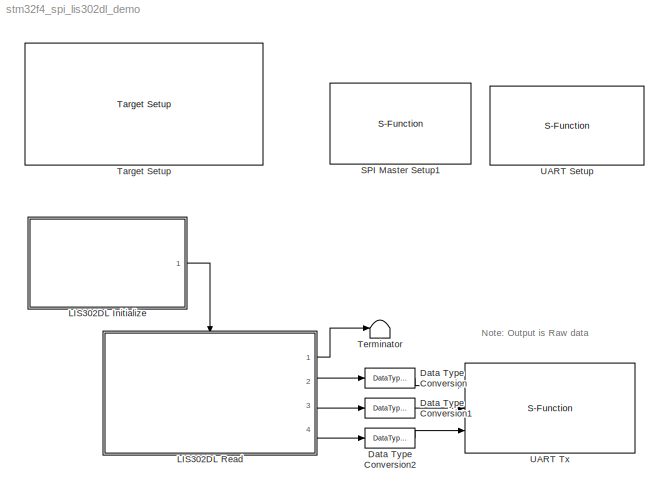
MODEL stm32f4_spi_lis302dl_demo
KIND model
CONFIG PreLoadFcn = waijung.modelPreload; % Required for working with Waijung Blockset. Do not remove.
BLOCK [DataTypeConversion] Data Type Conversion
  OutDataType = fixdt(1, 16)
  OutScaling = 2^0
  RndMeth = Floor
  SaturateOnIntegerOverflow = off
BLOCK [DataTypeConversion] Data Type Conversion1
  OutDataType = fixdt(1, 16)
  OutScaling = 2^0
  RndMeth = Floor
  SaturateOnIntegerOverflow = off
BLOCK [DataTypeConversion] Data Type Conversion2
  OutDataType = fixdt(1, 16)
  OutScaling = 2^0
  RndMeth = Floor
  SaturateOnIntegerOverflow = off
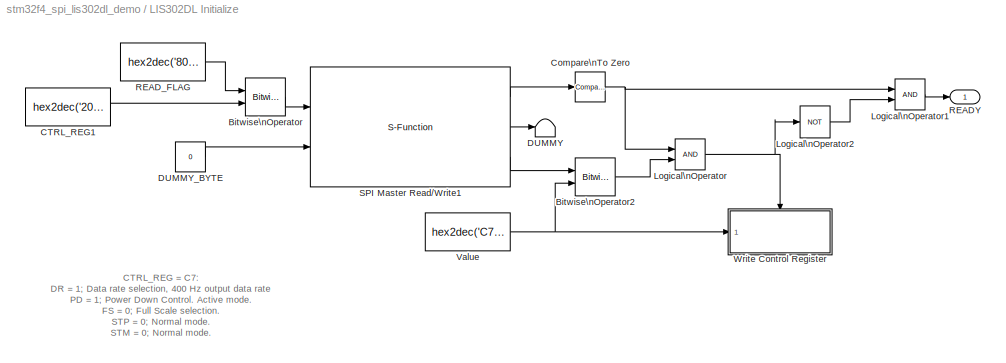
BLOCK [SubSystem] LIS302DL Initialize
  FunctionWithSeparateData = off
  MaskHideContents = off
  MinAlgLoopOccurrences = off
  Opaque = off
  Ports = [0, 1]
  PropExecContextOutsideSubsystem = off
  RTWSystemCode = Auto
  RequestExecContextInheritance = off
BLOCK [Reference] LIS302DL Initialize/Bitwise\nOperator  REF=simulink/Logic and Bit\nOperations/Bitwise\nOperator
  BitMask = bin2dec('11011001')
  BitMaskRealWorld = Stored Integer
  NumInputPorts = 2
  Ports = [2, 1]
  SourceBlock = simulink/Logic and Bit\nOperations/Bitwise\nOperator
  SourceType = Bitwise Operator
  UseBitMask = off
  logicop = OR
BLOCK [Reference] LIS302DL Initialize/Bitwise\nOperator2  REF=simulink/Logic and Bit\nOperations/Bitwise\nOperator
  BitMask = bin2dec('11011001')
  BitMaskRealWorld = Stored Integer
  NumInputPorts = 2
  Ports = [2, 1]
  SourceBlock = simulink/Logic and Bit\nOperations/Bitwise\nOperator
  SourceType = Bitwise Operator
  UseBitMask = off
  logicop = XOR
BLOCK [Constant] LIS302DL Initialize/CTRL_REG1
  OutDataType = fixdt(1, 16)
  OutDataTypeMode = uint8
  OutDataTypeStr = uint8
  OutScaling = 2^0
  SampleTime = 0.02
  Value = hex2dec('20')
BLOCK [Reference] LIS302DL Initialize/Compare\nTo Zero  REF=simulink/Logic and Bit\nOperations/Compare\nTo Zero
  FunctionWithSeparateData = off
  LogicOutDataTypeMode = boolean
  Ports = [1, 1]
  RTWMemSecDataConstants = Inherit from model
  RTWMemSecDataInternal = Inherit from model
  RTWMemSecDataParameters = Inherit from model
  RTWMemSecFuncExecute = Inherit from model
  RTWMemSecFuncInitTerm = Inherit from model
  ShowPortLabels = FromPortIcon
  SourceBlock = simulink/Logic and Bit\nOperations/Compare\nTo Zero
  SourceType = Compare To Zero
  SystemSampleTime = -1
  ZeroCross = off
  relop = ==
BLOCK [Terminator] LIS302DL Initialize/DUMMY
BLOCK [Constant] LIS302DL Initialize/DUMMY_BYTE
  OutDataType = fixdt(1, 16)
  OutDataTypeMode = uint8
  OutDataTypeStr = uint8
  OutScaling = 2^0
  Value = 0
BLOCK [Logic] LIS302DL Initialize/Logical\nOperator
  AllPortsSameDT = off
  LogicDataType = fixdt(0, 8)
  OutDataTypeMode = boolean
  OutDataTypeStr = boolean
  Ports = [2, 1]
BLOCK [Logic] LIS302DL Initialize/Logical\nOperator1
  AllPortsSameDT = off
  LogicDataType = fixdt(0, 8)
  OutDataTypeMode = boolean
  OutDataTypeStr = boolean
  Ports = [2, 1]
BLOCK [Logic] LIS302DL Initialize/Logical\nOperator2
  AllPortsSameDT = off
  LogicDataType = fixdt(0, 8)
  Operator = NOT
  OutDataTypeMode = boolean
  OutDataTypeStr = boolean
  Ports = [1, 1]
BLOCK [Outport] LIS302DL Initialize/READY
  IconDisplay = Port number
BLOCK [Constant] LIS302DL Initialize/READ_FLAG
  OutDataType = fixdt(1, 16)
  OutDataTypeMode = uint8
  OutDataTypeStr = uint8
  OutScaling = 2^0
  Value = hex2dec('80')
BLOCK [S-Function] LIS302DL Initialize/SPI Master Read//Write1
  EnableBusSupport = off
  FunctionName = stm32f4_spimaster
  MaskCallbackString = stm32f4_spimaster_callback('configuration');|stm32f4_spimaster_callback('module');|stm32f4_spimaster_callback('mode');||stm32f4_spimaster_callback('direction');||||stm32f4_spimaster_callback('datacount');|stm32f4_spimaster_callback('nssmode');|||||||||stm32f4_spimaster_callback('confstr');|stm32f4_spimaster_callback('sampletime');|stm32f4_spimaster_callback('sampletimestr');|stm32f4_spimaster_call...<+16ch>  <repeated x3 — deduplicated; at blocks: SPI Master Read/Write1>
  MaskDescription = Status:\n 0 - Success.\n Otherwise - Fail.
  MaskDisplay = text(0.5, 0.5, 'Module: SPI1 (Master)\\nRead/ Write\\nTs (sec): 0.02','ver','middle','hor','center');port_label('input', 1,'Wr0 (uint8)');port_label('input', 2,'Wr1 (uint8)');port_label('output', 1,'Status');port_label('output', 2,'Rd0 (uint8)');port_label('output', 3,'Rd1 (uint8)');
  MaskEnableString = on,on,off,off,on,on,on,on,on,on,on,on,on,on,on,on,off,off,on,on,on,on
  MaskHelp = web(fullfile(waijungdocroot,'stm32f4_spimaster_readwrite.htm'), '-browser')
  MaskIconFrame = on
  MaskIconOpaque = on
  MaskIconRotate = none
  MaskIconUnits = normalized
  MaskInitialization = stm32f4_spimaster_callback('init');
  MaskPortRotate = default
  MaskPromptString = Configuration:|SPI Module:|Mode:|Last module:|Direction:|Data format:|Buad rate prescaler: Pclk/|Clock polarity (CPOL)/ Clock phase (CPHA):|Data Read/Write count:|Slave/chip select (nSS, nCS) mode|Slave/chip select (nSS, nCS) pin|Slave/chip select port (nSS, nCS)|Slave/chip select pin (nSS, nCS)|SCLK pin:|MISO pin:|MOSI pin:|Input type array|Output type array|Configuration string|Sample time (sec)...<+45ch>  <repeated x3 — deduplicated; at blocks: SPI Master Read/Write1>
  MaskSelfModifiable = on
  MaskStyleString = popup(Setup|Transaction),popup(1|2|3),popup(Read/ Write|Read|Write),edit,popup(Full-Duplex|Half-Duplex_Tx|Half-Duplex_Rx),popup(8bit/ FirstBit_MSB|8bit/ FirstBit_LSB|16bit/ FirstBit_MSB|16bit/ FirstBit_LSB),popup(2|4|8|16|32|64|128|256),popup(CPOL_Low/ CPHA_1Edge|CPOL_Low/ CPHA_2Edge|CPOL_High/ CPHA_1Edge|CPOL_High/ CPHA_2Edge),edit,popup(Hardware|Software|Custom),popup(Not used|A4|A15),popup(A|B|...<+155ch>  <repeated x3 — deduplicated; at blocks: SPI Master Read/Write1>
  MaskTabNameString = ,,,,,,,,,,,,,,,,,,,,,
  MaskToolTipString = on,on,on,on,on,on,on,on,on,on,on,on,on,on,on,on,on,on,on,on,on,on
  MaskTunableValueString = off,off,off,off,off,off,off,off,off,off,off,off,off,off,off,off,off,off,off,off,off,off
  MaskType = stm32f4_spimaster
  MaskValueString = Transaction|1|Read/ Write|1|Full-Duplex|8bit/ FirstBit_MSB|4|CPOL_Low/ CPHA_1Edge|2|Custom|Not used|E|0|A5|A6|A7|[2 3 3]|[3 7 3 3]|[\"SPI_Direction_2Lines_FullDuplex\",\"8b\",\"MSB\",\"Low\",\"1Edge\",\"4\",\"Soft\",\"0\",\"x\",\"x\",\"0\",\"x\",\"x\",\"1\",\"A\",\"5\",\"1\",\"A\",\"6\",\"1\",\"A\",\"7\",\"1\",\"0\",\"0\",\"0\",\"0\",\"0\",\"0\",\"0\",\"0\",\"PP\",\"0\",\"UP\"]|-1|0.02|LIS302DLIni...<+26ch>
  MaskVarAliasString = ,,,,,,,,,,,,,,,,,,,,,
  MaskVariables = configuration=&1;module=&2;mode=&3;lastmodule=&4;direction=&5;dataformat=&6;prescaler=&7;cpolcpha=&8;datacount=@9;nssmode=&10;nsspin=&11;softnssport=&12;softnsspin=&13;sckpin=&14;misopin=&15;mosipin=&16;inputtypearray=@17;outputtypearray=@18;confstr=&19;sampletime=@20;sampletimestr=&21;blockid=&22;  <repeated x3 — deduplicated; at blocks: SPI Master Read/Write1>
  MaskVisibilityString = off,on,off,off,off,off,off,off,on,off,off,off,off,off,off,off,off,off,off,on,off,off
  Parameters = mode,configuration,module,datacount,inputtypearray,outputtypearray,confstr,sampletime,sampletimestr,blockid
  Ports = [2, 3]
BLOCK [Constant] LIS302DL Initialize/Value
  OutDataType = fixdt(1, 16)
  OutDataTypeMode = uint8
  OutDataTypeStr = uint8
  OutScaling = 2^0
  Value = hex2dec('C7')
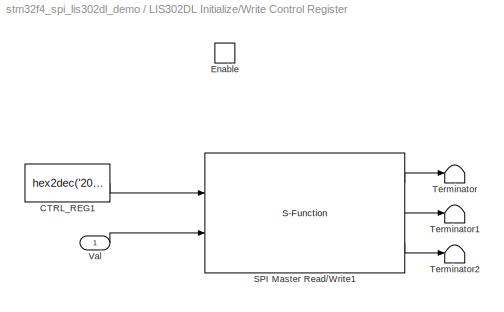
BLOCK [SubSystem] LIS302DL Initialize/Write Control Register
  FunctionWithSeparateData = off
  MaskHideContents = off
  MinAlgLoopOccurrences = off
  Opaque = off
  Ports = [1, 0, 1]
  PropExecContextOutsideSubsystem = off
  RTWSystemCode = Auto
  RequestExecContextInheritance = off
  TreatAsAtomicUnit = on
BLOCK [Constant] LIS302DL Initialize/Write Control Register/CTRL_REG1
  OutDataType = fixdt(1, 16)
  OutDataTypeMode = uint8
  OutDataTypeStr = uint8
  OutScaling = 2^0
  Value = hex2dec('20')
BLOCK [EnablePort] LIS302DL Initialize/Write Control Register/Enable
  Ports = []
BLOCK [S-Function] LIS302DL Initialize/Write Control Register/SPI Master Read//Write1
  EnableBusSupport = off
  FunctionName = stm32f4_spimaster
  MaskDescription = Status:\n 0 - Success.\n Otherwise - Fail.
  MaskDisplay = text(0.5, 0.5, 'Module: SPI1 (Master)\\nRead/ Write\\nTs (sec): 0.02','ver','middle','hor','center');port_label('input', 1,'Wr0 (uint8)');port_label('input', 2,'Wr1 (uint8)');port_label('output', 1,'Status');port_label('output', 2,'Rd0 (uint8)');port_label('output', 3,'Rd1 (uint8)');
  MaskEnableString = on,on,off,off,on,on,on,on,on,on,on,on,on,on,on,on,off,off,on,on,on,on
  MaskHelp = web(fullfile(waijungdocroot,'stm32f4_spimaster_readwrite.htm'), '-browser')
  MaskIconFrame = on
  MaskIconOpaque = on
  MaskIconRotate = none
  MaskIconUnits = normalized
  MaskInitialization = stm32f4_spimaster_callback('init');
  MaskPortRotate = default
  MaskSelfModifiable = on
  MaskTabNameString = ,,,,,,,,,,,,,,,,,,,,,
  MaskToolTipString = on,on,on,on,on,on,on,on,on,on,on,on,on,on,on,on,on,on,on,on,on,on
  MaskTunableValueString = off,off,off,off,off,off,off,off,off,off,off,off,off,off,off,off,off,off,off,off,off,off
  MaskType = stm32f4_spimaster
  MaskValueString = Transaction|1|Read/ Write|1|Full-Duplex|8bit/ FirstBit_MSB|4|CPOL_Low/ CPHA_1Edge|2|Custom|Not used|E|0|A5|A6|A7|[2 3 3]|[3 7 3 3]|[\"SPI_Direction_2Lines_FullDuplex\",\"8b\",\"MSB\",\"Low\",\"1Edge\",\"4\",\"Soft\",\"0\",\"x\",\"x\",\"0\",\"x\",\"x\",\"1\",\"A\",\"5\",\"1\",\"A\",\"6\",\"1\",\"A\",\"7\",\"1\",\"0\",\"0\",\"0\",\"0\",\"0\",\"0\",\"0\",\"0\",\"PP\",\"0\",\"UP\"]|-1|0.02|LIS302DLIni...<+46ch>
  MaskVarAliasString = ,,,,,,,,,,,,,,,,,,,,,
  MaskVisibilityString = off,on,off,off,off,off,off,off,on,off,off,off,off,off,off,off,off,off,off,on,off,off
  Parameters = mode,configuration,module,datacount,inputtypearray,outputtypearray,confstr,sampletime,sampletimestr,blockid
  Ports = [2, 3]
BLOCK [Terminator] LIS302DL Initialize/Write Control Register/Terminator
BLOCK [Terminator] LIS302DL Initialize/Write Control Register/Terminator1
BLOCK [Terminator] LIS302DL Initialize/Write Control Register/Terminator2
BLOCK [Inport] LIS302DL Initialize/Write Control Register/Val
  IconDisplay = Port number
  OutDataType = fixdt(1, 16)
  OutScaling = 2^0
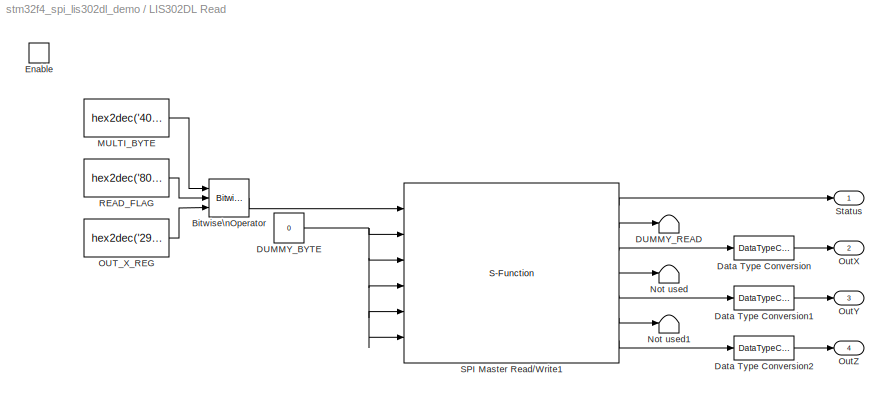
BLOCK [SubSystem] LIS302DL Read
  FunctionWithSeparateData = off
  MaskHideContents = off
  MinAlgLoopOccurrences = off
  Opaque = off
  Ports = [0, 4, 1]
  PropExecContextOutsideSubsystem = off
  RTWSystemCode = Auto
  RequestExecContextInheritance = off
BLOCK [Reference] LIS302DL Read/Bitwise\nOperator  REF=simulink/Logic and Bit\nOperations/Bitwise\nOperator
  BitMask = bin2dec('11011001')
  BitMaskRealWorld = Stored Integer
  NumInputPorts = 3
  Ports = [3, 1]
  SourceBlock = simulink/Logic and Bit\nOperations/Bitwise\nOperator
  SourceType = Bitwise Operator
  UseBitMask = off
  logicop = OR
BLOCK [Constant] LIS302DL Read/DUMMY_BYTE
  OutDataType = fixdt(1, 16)
  OutDataTypeMode = uint8
  OutDataTypeStr = uint8
  OutScaling = 2^0
  Value = 0
BLOCK [Terminator] LIS302DL Read/DUMMY_READ
BLOCK [DataTypeConversion] LIS302DL Read/Data Type Conversion
  OutDataType = fixdt(1, 16)
  OutDataTypeMode = int8
  OutDataTypeStr = int8
  OutScaling = 2^0
  RndMeth = Floor
  SaturateOnIntegerOverflow = off
BLOCK [DataTypeConversion] LIS302DL Read/Data Type Conversion1
  OutDataType = fixdt(1, 16)
  OutDataTypeMode = int8
  OutDataTypeStr = int8
  OutScaling = 2^0
  RndMeth = Floor
  SaturateOnIntegerOverflow = off
BLOCK [DataTypeConversion] LIS302DL Read/Data Type Conversion2
  OutDataType = fixdt(1, 16)
  OutDataTypeMode = int8
  OutDataTypeStr = int8
  OutScaling = 2^0
  RndMeth = Floor
  SaturateOnIntegerOverflow = off
BLOCK [EnablePort] LIS302DL Read/Enable
  Ports = []
BLOCK [Constant] LIS302DL Read/MULTI_BYTE
  OutDataType = fixdt(1, 16)
  OutDataTypeMode = uint8
  OutDataTypeStr = uint8
  OutScaling = 2^0
  Value = hex2dec('40')
BLOCK [Terminator] LIS302DL Read/Not used
BLOCK [Terminator] LIS302DL Read/Not used1
BLOCK [Constant] LIS302DL Read/OUT_X_REG
  OutDataType = fixdt(1, 16)
  OutDataTypeMode = uint8
  OutDataTypeStr = uint8
  OutScaling = 2^0
  Value = hex2dec('29')
BLOCK [Outport] LIS302DL Read/OutX
  IconDisplay = Port number
  Port = 2
BLOCK [Outport] LIS302DL Read/OutY
  IconDisplay = Port number
  Port = 3
BLOCK [Outport] LIS302DL Read/OutZ
  IconDisplay = Port number
  Port = 4
BLOCK [Constant] LIS302DL Read/READ_FLAG
  OutDataType = fixdt(1, 16)
  OutDataTypeMode = uint8
  OutDataTypeStr = uint8
  OutScaling = 2^0
  Value = hex2dec('80')
BLOCK [S-Function] LIS302DL Read/SPI Master Read//Write1
  EnableBusSupport = off
  FunctionName = stm32f4_spimaster
  MaskDescription = Status:\n 0 - Success.\n Otherwise - Fail.
  MaskDisplay = text(0.5, 0.5, 'Module: SPI1 (Master)\\nRead/ Write\\nTs (sec): 0.02','ver','middle','hor','center');port_label('input', 1,'Wr0 (uint8)');port_label('input', 2,'Wr1 (uint8)');port_label('input', 3,'Wr2 (uint8)');port_label('input', 4,'Wr3 (uint8)');port_label('input', 5,'Wr4 (uint8)');port_label('input', 6,'Wr5 (uint8)');port_label('output', 1,'Status');port_label('output', 2,'Rd0 (uint8)');port_l...<+184ch>
  MaskEnableString = on,on,off,off,on,on,on,on,on,on,on,on,on,on,on,on,off,off,on,on,on,on
  MaskHelp = web(fullfile(waijungdocroot,'stm32f4_spimaster_readwrite.htm'), '-browser')
  MaskIconFrame = on
  MaskIconOpaque = on
  MaskIconRotate = none
  MaskIconUnits = normalized
  MaskInitialization = stm32f4_spimaster_callback('init');
  MaskPortRotate = default
  MaskSelfModifiable = on
  MaskTabNameString = ,,,,,,,,,,,,,,,,,,,,,
  MaskToolTipString = on,on,on,on,on,on,on,on,on,on,on,on,on,on,on,on,on,on,on,on,on,on
  MaskTunableValueString = off,off,off,off,off,off,off,off,off,off,off,off,off,off,off,off,off,off,off,off,off,off
  MaskType = stm32f4_spimaster
  MaskValueString = Transaction|1|Read/ Write|1|Full-Duplex|8bit/ FirstBit_MSB|4|CPOL_Low/ CPHA_1Edge|6|Custom|Not used|E|0|A5|A6|A7|[6 3 3 3 3 3 3]|[7 7 3 3 3 3 3 3]|[\"SPI_Direction_2Lines_FullDuplex\",\"8b\",\"MSB\",\"Low\",\"1Edge\",\"4\",\"Soft\",\"0\",\"x\",\"x\",\"0\",\"x\",\"x\",\"1\",\"A\",\"5\",\"1\",\"A\",\"6\",\"1\",\"A\",\"7\",\"1\",\"0\",\"0\",\"0\",\"0\",\"0\",\"0\",\"0\",\"0\",\"PP\",\"0\",\"UP\"]|-1|...<+36ch>
  MaskVarAliasString = ,,,,,,,,,,,,,,,,,,,,,
  MaskVisibilityString = off,on,off,off,off,off,off,off,on,off,off,off,off,off,off,off,off,off,off,on,off,off
  Parameters = mode,configuration,module,datacount,inputtypearray,outputtypearray,confstr,sampletime,sampletimestr,blockid
  Ports = [6, 7]
BLOCK [Outport] LIS302DL Read/Status
  IconDisplay = Port number
BLOCK [S-Function] SPI Master Setup1
  EnableBusSupport = off
  FunctionName = stm32f4_spimaster
  MaskCallbackString = stm32f4_spimaster_callback('configuration');|stm32f4_spimaster_callback('module');|stm32f4_spimaster_callback('mode');||stm32f4_spimaster_callback('direction');||||stm32f4_spimaster_callback('baudrate');||stm32f4_spimaster_callback('datacount');|stm32f4_spimaster_callback('nssmode');|||||||||stm32f4_spimaster_callback('confstr');|stm32f4_spimaster_callback('sampletime');|stm32f4_spimaster_callback...<+57ch>
  MaskDescription = Direction:\n - Full-Duplex, use this mode when need to send and receive data at same clock.\n - Half-Duplex_Tx, this mode is to transmit data to slave only. Pin MISO (Rx) can be free for other function.\n - Half-Duplex_Rx, this mode is to receive data from slave only. Pin MOSIO (Tx) can be free for other function.\nData format:\n  This configuration is depending on the specification of slave devic...<+752ch>
  MaskDisplay = text(0.5, 0.5, 'Module: SPI1 (Master)\\nFull-Duplex\\nBaudrate: 5250000','ver','middle','hor','center');
  MaskEnableString = on,on,off,off,on,on,off,on,on,on,off,on,on,on,on,on,on,on,off,off,on,on,on,on
  MaskHelp = web(fullfile(waijungdocroot,'stm32f4_spimaster_setup.htm'), '-browser')
  MaskIconFrame = on
  MaskIconOpaque = on
  MaskIconRotate = none
  MaskIconUnits = normalized
  MaskInitialization = stm32f4_spimaster_callback('init');
  MaskPortRotate = default
  MaskPromptString = Configuration:|SPI Module:|Mode:|Last module:|Direction:|Data format:|Buad rate prescaler: Pclk/|Last PCLK|Baud rate (Hz)|Clock polarity (CPOL)/ Clock phase (CPHA):|Data Write count:|Slave/chip select (nSS, nCS) mode|Slave/chip select (nSS, nCS) pin|Slave/chip select port (nSS, nCS)|Slave/chip select pin (nSS, nCS)|SCLK pin:|MISO pin:|MOSI pin:|Input type array|Output type array|Configuration stri...<+65ch>
  MaskSelfModifiable = on
  MaskStyleString = popup(Setup|Transaction),popup(1|2|3),popup(Read/ Write|Read|Write),edit,popup(Full-Duplex|Half-Duplex_Tx|Half-Duplex_Rx),popup(8bit/ FirstBit_MSB|8bit/ FirstBit_LSB|16bit/ FirstBit_MSB|16bit/ FirstBit_LSB),popup(2|4|8|16|32|64|128|256),edit,popup(Not set|42000000|21000000|10500000|5250000|2625000|1312500|656250|328125),popup(CPOL_Low/ CPHA_1Edge|CPOL_Low/ CPHA_2Edge|CPOL_High/ CPHA_1Edge|CPOL_Hig...<+240ch>
  MaskTabNameString = ,,,,,,,,,,,,,,,,,,,,,,,
  MaskToolTipString = on,on,on,on,on,on,on,on,on,on,on,on,on,on,on,on,on,on,on,on,on,on,on,on
  MaskTunableValueString = off,off,off,off,off,off,off,off,off,off,off,off,off,off,off,off,off,off,off,off,off,off,off,off
  MaskType = stm32f4_spimaster
  MaskValueString = Setup|1|Write|1|Full-Duplex|8bit/ FirstBit_MSB|16|84000000|5250000|CPOL_Low/ CPHA_1Edge|0|Software|Not used|E|3|A5|A6|A7|[0]|[0]|[\"SPI_Direction_2Lines_FullDuplex\",\"8b\",\"MSB\",\"Low\",\"1Edge\",\"16\",\"Soft\",\"0\",\"x\",\"x\",\"1\",\"E\",\"3\",\"1\",\"A\",\"5\",\"1\",\"A\",\"6\",\"1\",\"A\",\"7\",\"1\",\"0\",\"0\",\"0\",\"1\",\"0\",\"0\",\"0\",\"0\",\"PP\",\"0\",\"UP\"]|-1|0.01|SPIMasterSet...<+3ch>
  MaskVarAliasString = ,,,,,,,,,,,,,,,,,,,,,,,
  MaskVariables = configuration=&1;module=&2;mode=&3;lastmodule=&4;direction=&5;dataformat=&6;prescaler=&7;lastpclk=&8;baudrate=&9;cpolcpha=&10;datacount=@11;nssmode=&12;nsspin=&13;softnssport=&14;softnsspin=&15;sckpin=&16;misopin=&17;mosipin=&18;inputtypearray=@19;outputtypearray=@20;confstr=&21;sampletime=@22;sampletimestr=&23;blockid=&24;
  MaskVisibilityString = off,on,off,off,on,on,on,off,on,on,off,on,off,on,on,on,on,on,off,off,off,off,off,off
  Parameters = mode,configuration,module,datacount,inputtypearray,outputtypearray,confstr,sampletime,sampletimestr,blockid
  Ports = []
BLOCK [Reference] Target Setup  REF=stm32f4_device_config_lib/Target Setup
  Ports = []
  Priority = 100
  SourceBlock = stm32f4_device_config_lib/Target Setup
  SourceType = stm32f4_target_setup
  assemblercontrolstr = $(patsubst %, -I%, .) -mcpu=cortex-m4 -mthumb -mthumb-interwork -mfloat-abi=hard -mfpu=fpv4-sp-d16 -ffast-math -Wall -Wextra -Ofast -Wa,-amhls=$(<:.s=.lst) -D__STACK_SIZE=$(STACK_SIZE) -D__HEAP_SIZE=$(HEAP_SIZE)
  blockid = TargetSetup
  clockconfig = HSEOSC-8MHz
  compiler = GNU ARM
  compilercontrolstr = $(patsubst %, -I%, .) -mcpu=cortex-m4 -mthumb -mthumb-interwork -mfloat-abi=hard -mfpu=fpv4-sp-d16 -ffast-math -Wall -Wextra -Ofast
  editctrlstr = on
  enableautocompiledownload = on
  execprofile = None
  flashlength = 1024k
  flashorigin = 0x8000000
  fullchiperase = off
  hclk = 168000000
  heapsize = 0x200
  hseval = 8000000
  lastprofileruart = 3
  linkercontrolstr = -T$(LD_SCRIPT) -g -Wl,-Map=$(MAP),--cref,--no-warn-mismatch -mcpu=cortex-m4 -mthumb -mthumb-interwork -mfloat-abi=hard -mfpu=fpv4-sp-d16 -specs=nosys.specs
  manualsetsampletime = off
  mcu = STM32F417IG (LQFP176)
  mcustr = STM32F417IG
  previous_compiler = GNU ARM
  profilerbaud = 500000
  profilerinitstr = 0.01,168000000,1680000,500000,0
  profilertxpin = D8
  profileruart = 3
  programmerinterface = ST-Link
  ramlength = 128k
  ramorigin = 0x20000000
  runafterdownload = on
  sampletime = 0.01
  showmemoryconfiguration = off
  stacksize = 0x400
  system_stm32f4xx_c_path = <path>
  systickreloadvalue = 1680000
  useextram = off
BLOCK [Terminator] Terminator
BLOCK [S-Function] UART Setup
  EnableBusSupport = off
  FunctionName = stm32f4_usart
  MaskCallbackString = stm32f4_usart_callback('configuration');|stm32f4_usart_callback('uartmodule');|stm32f4_usart_callback('baudrate');||||||stm32f4_usart_callback('flowcontrol');|||stm32f4_usart_callback('advanceoptions');|||stm32f4_usart_callback('transfer');|stm32f4_usart_callback('packetmode');|stm32f4_usart_callback('binheader');|stm32f4_usart_callback('binterminator');|stm32f4_usart_callback('porttype');|stm32f4...<+572ch>
  MaskDisplay = text(0.5, 0.5, 'Module: USART3_Setup\\nBaud (Bps): 115200\\nDMA Buffer: 512/-\\nTx/Rx Pin: D8/-','ver','middle','hor','center');
  MaskEnableString = on,on,on,on,on,on,on,on,on,off,off,on,on,on,on,on,on,on,on,on,on,on,on,on,on,on,on,on,on,on,on,on,on,on,on,on,on,on,on,off,off,on,on
  MaskHelp = web(fullfile(waijungdocroot,'stm32f4_usart_setup.htm'), '-browser')
  MaskIconFrame = on
  MaskIconOpaque = on
  MaskIconRotate = none
  MaskIconUnits = normalized
  MaskInitialization = stm32f4_usart_callback('init');
  MaskPortRotate = default
  MaskPromptString = Configuration|UART Module|Baud rate (bps)|Data bits|Parity|Stop bit|Tx Pin|Rx Pin|Hardware flow control|HW Flow control, CTS Pin|HW Flow control, RTS Pin|Advance options|Rx buffer size (bytes)|Tx buffer size (bytes)|Transfer|Packet mode|Binary header (example: '7E 7E')|Binary terminator (example: '03 03')|Number of data port, type DOUBLE|Number of data port, type SINGLE|Number of data port, type I...<+457ch>
  MaskSelfModifiable = on
  MaskStyleString = popup(Setup|Tx|Rx),popup(1|2|3|4|5|6),edit,popup(8),popup(No|Odd|Even),popup(0.5|1|1.5|2),popup(Not used|B10|C10|D8),popup(Not used|B11|C11|D9),popup(None|RTS|CTS|RTS/CTS),popup(Not used|B13|D11),popup(Not used|B14|D12),checkbox,popup(16|32|64|128|256|512|1024|2048),popup(16|32|64|128|256|512|1024|2048),popup(Blocking|Non-Blocking),popup(Ascii|Binary|String Buffer),edit,edit,edit,edit,edit,edit,ed...<+261ch>
  MaskTabNameString = ,,,,,,,,,,,,,,,,,,,,,,,,,,,,,,,,,,,,,,,,,,
  MaskToolTipString = on,on,on,on,on,on,on,on,on,on,on,on,on,on,on,on,on,on,on,on,on,on,on,on,on,on,on,on,on,on,on,on,on,on,on,on,on,on,on,on,on,on,on
  MaskTunableValueString = off,off,off,off,off,off,off,off,off,off,off,off,off,off,off,off,off,off,off,off,off,off,off,off,off,off,off,off,off,off,off,off,off,off,off,off,off,off,off,off,off,off,off
  MaskType = stm32f4_usart
  MaskValueString = Setup|3|115200|8|No|1|D8|Not used|None|Not used|Not used|off|512|512|Blocking|Ascii|'7E 7E'|'03 03'|1|0|1|0|0|0|0|0|'%d,%f'|CRLF (0x0D 0x0A - \"<path>")|CR (0x0D - \"\\r\")|<empty>||[0]|[0]|[0]|[0]|0|''|[0]|-1|0.01|UARTSetup|[ \"dummy\", \"1\", \"D\", \"8\", \"0\", \"*\", \"*\", \"0\", \"*\", \"*\", \"0\", \"*\", \"*\", \"1\", \"4\", \"3\", \"1\", \"4\", \"1\", \"512\", \"512\", \"1\", \"3\", \"1...<+54ch>
  MaskVarAliasString = ,,,,,,,,,,,,,,,,,,,,,,,,,,,,,,,,,,,,,,,,,,
  MaskVariables = configuration=&1;uartmodule=&2;baudrate=@3;databits=@4;parity=&5;stopbit=&6;remaptxpin=&7;remaprxpin=&8;flowcontrol=&9;remapctspin=&10;remaprtspin=&11;advanceoptions=@12;rxbuffersize=@13;txbuffersize=@14;transfer=&15;packetmode=&16;binheader=&17;binterminator=&18;porttype_double=@19;porttype_single=@20;porttype_int8=@21;porttype_uint8=@22;porttype_int16=@23;porttype_uint16=@24;porttype_int32=@25;p...<+306ch>
  MaskVisibilityString = off,on,on,on,on,on,on,on,on,on,on,on,off,off,off,off,off,off,off,off,off,off,off,off,off,off,off,off,off,off,off,off,off,off,off,off,off,off,off,off,off,off,off
  Parameters = configuration,uartmodule,transfer,baudrate,inputtype,outputtype,confstr,binheaderarray,binterminatorarray,asciiheader,asciiterminator,bindatalength,packetmode,varname,sampletime,sampletimestr,blockid
  Ports = []
  Priority = 1
BLOCK [S-Function] UART Tx
  EnableBusSupport = off
  FunctionName = stm32f4_usart
  MaskCallbackString = stm32f4_usart_callback('configuration');|stm32f4_usart_callback('uartmodule');|stm32f4_usart_callback('baudrate');||||||stm32f4_usart_callback('flowcontrol');|||stm32f4_usart_callback('advanceoptions');|||stm32f4_usart_callback('transfer');|stm32f4_usart_callback('packetmode');|stm32f4_usart_callback('binheader');|stm32f4_usart_callback('binterminator');|stm32f4_usart_callback('porttype');|stm32f4...<+572ch>
  MaskDescription = Data type for Ascii format\n%u, %i, %d, %o, %x: uint32\n%e, %g, %f: single\n%s: string\n%c: int8
  MaskDisplay = text(0.95, 0.5, 'Module: USART3_Tx\\nPacket: Ascii\\nTransfer: Blocking\\nTs (sec): 0.02','ver','middle','hor','right'); port_label('input', 1,'int32'); port_label('input', 2,'int32'); port_label('input', 3,'int32');
  MaskEnableString = on,on,on,on,on,on,on,on,on,off,off,on,on,on,on,on,on,on,on,on,on,on,on,on,on,on,on,on,on,on,on,on,on,on,on,on,on,on,on,off,off,on,on
  MaskHelp = web(fullfile(waijungdocroot,'stm32f4_usart_tx.htm'), '-browser')
  MaskIconFrame = on
  MaskIconOpaque = on
  MaskIconRotate = none
  MaskIconUnits = normalized
  MaskInitialization = stm32f4_usart_callback('init');
  MaskPortRotate = default
  MaskPromptString = Configuration|UART Module|Baud rate (bps)|Data bits|Parity|Stop bit|Tx Pin|Rx Pin|Hardware flow control|HW Flow control, CTS Pin|HW Flow control, RTS Pin|Advance options|Rx buffer size (bytes)|Tx buffer size (bytes)|Transfer|Packet mode|Binary header (example: '7E 7E')|Binary terminator (example: '03 03')|Number of data port, type DOUBLE|Number of data port, type SINGLE|Number of data port, type I...<+457ch>
  MaskSelfModifiable = on
  MaskStyleString = popup(Setup|Tx|Rx),popup(1|2|3|4|5|6),edit,popup(8),popup(No|Odd|Even),popup(0.5|1|1.5|2),popup(Not used|A9|B6),popup(Not used|A10|B7),popup(None|RTS|CTS|RTS/CTS),popup(Not used|A11),popup(Not used|A12),checkbox,popup(16|32|64|128|256|512|1024|2048),popup(16|32|64|128|256|512|1024|2048),popup(Blocking|Non-Blocking),popup(Ascii|Binary|String Buffer),edit,edit,edit,edit,edit,edit,edit,edit,edit,edit...<+244ch>
  MaskTabNameString = ,,,,,,,,,,,,,,,,,,,,,,,,,,,,,,,,,,,,,,,,,,
  MaskToolTipString = on,on,on,on,on,on,on,on,on,on,on,on,on,on,on,on,on,on,on,on,on,on,on,on,on,on,on,on,on,on,on,on,on,on,on,on,on,on,on,on,on,on,on
  MaskTunableValueString = off,off,off,off,off,off,off,off,off,off,off,off,off,off,off,off,off,off,off,off,off,off,off,off,off,off,off,off,off,off,off,off,off,off,off,off,off,off,off,off,off,off,off
  MaskType = stm32f4_usart
  MaskValueString = Tx|3|115200|8|No|1|Not used|Not used|None|Not used|Not used|off|512|512|Blocking|Ascii|'7E 7E'|'03 03'|1|0|1|0|0|0|0|0|'OutX=%d,OutY=%d,OutZ=%d'|CRLF (0x0D 0x0A - \"<path>")|CRLF (0x0D 0x0A - \"<path>")|<empty>||[3  6 6 6]|[0]|[0]|[0]|0|'OutX=%d,OutY=%d,OutZ=%d\\r\\n'|[2 13 10]|-1|0.02|UARTTx|[ \"dummy\", \"0\", \"*\", \"*\", \"0\", \"*\", \"*\", \"0\", \"*\", \"*\", \"0\", \"*\", \"*\", \"1\", ...<+124ch>
  MaskVarAliasString = ,,,,,,,,,,,,,,,,,,,,,,,,,,,,,,,,,,,,,,,,,,
  MaskVariables = configuration=&1;uartmodule=&2;baudrate=@3;databits=@4;parity=&5;stopbit=&6;remaptxpin=&7;remaprxpin=&8;flowcontrol=&9;remapctspin=&10;remaprtspin=&11;advanceoptions=@12;rxbuffersize=@13;txbuffersize=@14;transfer=&15;packetmode=&16;binheader=&17;binterminator=&18;porttype_double=@19;porttype_single=@20;porttype_int8=@21;porttype_uint8=@22;porttype_int16=@23;porttype_uint16=@24;porttype_int32=@25;p...<+306ch>
  MaskVisibilityString = off,on,off,off,off,off,off,off,off,off,off,off,off,off,on,on,off,off,off,off,off,off,off,off,off,off,on,off,on,off,off,off,off,off,off,off,off,off,on,off,off,off,off
  Parameters = configuration,uartmodule,transfer,baudrate,inputtype,outputtype,confstr,binheaderarray,binterminatorarray,asciiheader,asciiterminator,bindatalength,packetmode,varname,sampletime,sampletimestr,blockid
  Ports = [3]
  Priority = 1
ANNOTATION (root): Note: Output is Raw data
ANNOTATION LIS302DL Initialize: CTRL_REG = C7:\nDR = 1; Data rate selection, 400 Hz output data rate\nPD = 1; Power Down Control. Active mode.\nFS = 0; Full Scale selection.\nSTP = 0; Normal mode.\nSTM = 0; Normal mode.\nZen = 1; Z axis enable\nYen = 1; Y axis enable.\nXen = 1; X axis enable.
LINE Data Type Conversion1:1 -> UART Tx:2
LINE Data Type Conversion2:1 -> UART Tx:3
LINE Data Type Conversion:1 -> UART Tx:1
LINE LIS302DL Initialize/Bitwise\nOperator2:1 -> LIS302DL Initialize/Logical\nOperator:2
LINE LIS302DL Initialize/Bitwise\nOperator:1 -> LIS302DL Initialize/SPI Master Read//Write1:1
LINE LIS302DL Initialize/CTRL_REG1:1 -> LIS302DL Initialize/Bitwise\nOperator:2
NET LIS302DL Initialize/Compare\nTo Zero:1 -> LIS302DL Initialize/Logical\nOperator1:1, LIS302DL Initialize/Logical\nOperator:1
LINE LIS302DL Initialize/DUMMY_BYTE:1 -> LIS302DL Initialize/SPI Master Read//Write1:2
LINE LIS302DL Initialize/Logical\nOperator1:1 -> LIS302DL Initialize/READY:1
LINE LIS302DL Initialize/Logical\nOperator2:1 -> LIS302DL Initialize/Logical\nOperator1:2
NET LIS302DL Initialize/Logical\nOperator:1 -> LIS302DL Initialize/Logical\nOperator2:1, LIS302DL Initialize/Write Control Register:enable
LINE LIS302DL Initialize/READ_FLAG:1 -> LIS302DL Initialize/Bitwise\nOperator:1
LINE LIS302DL Initialize/SPI Master Read//Write1:1 -> LIS302DL Initialize/Compare\nTo Zero:1
LINE LIS302DL Initialize/SPI Master Read//Write1:2 -> LIS302DL Initialize/DUMMY:1
LINE LIS302DL Initialize/SPI Master Read//Write1:3 -> LIS302DL Initialize/Bitwise\nOperator2:1
NET LIS302DL Initialize/Value:1 -> LIS302DL Initialize/Bitwise\nOperator2:2, LIS302DL Initialize/Write Control Register:1
LINE LIS302DL Initialize/Write Control Register/CTRL_REG1:1 -> LIS302DL Initialize/Write Control Register/SPI Master Read//Write1:1
LINE LIS302DL Initialize/Write Control Register/SPI Master Read//Write1:1 -> LIS302DL Initialize/Write Control Register/Terminator:1
LINE LIS302DL Initialize/Write Control Register/SPI Master Read//Write1:2 -> LIS302DL Initialize/Write Control Register/Terminator1:1
LINE LIS302DL Initialize/Write Control Register/SPI Master Read//Write1:3 -> LIS302DL Initialize/Write Control Register/Terminator2:1
LINE LIS302DL Initialize/Write Control Register/Val:1 -> LIS302DL Initialize/Write Control Register/SPI Master Read//Write1:2
LINE LIS302DL Initialize:1 -> LIS302DL Read:enable
LINE LIS302DL Read/Bitwise\nOperator:1 -> LIS302DL Read/SPI Master Read//Write1:1
NET LIS302DL Read/DUMMY_BYTE:1 -> LIS302DL Read/SPI Master Read//Write1:2, LIS302DL Read/SPI Master Read//Write1:3, LIS302DL Read/SPI Master Read//Write1:4, LIS302DL Read/SPI Master Read//Write1:5, LIS302DL Read/SPI Master Read//Write1:6
LINE LIS302DL Read/Data Type Conversion1:1 -> LIS302DL Read/OutY:1
LINE LIS302DL Read/Data Type Conversion2:1 -> LIS302DL Read/OutZ:1
LINE LIS302DL Read/Data Type Conversion:1 -> LIS302DL Read/OutX:1
LINE LIS302DL Read/MULTI_BYTE:1 -> LIS302DL Read/Bitwise\nOperator:1
LINE LIS302DL Read/OUT_X_REG:1 -> LIS302DL Read/Bitwise\nOperator:3
LINE LIS302DL Read/READ_FLAG:1 -> LIS302DL Read/Bitwise\nOperator:2
LINE LIS302DL Read/SPI Master Read//Write1:1 -> LIS302DL Read/Status:1
LINE LIS302DL Read/SPI Master Read//Write1:2 -> LIS302DL Read/DUMMY_READ:1
LINE LIS302DL Read/SPI Master Read//Write1:3 -> LIS302DL Read/Data Type Conversion:1
LINE LIS302DL Read/SPI Master Read//Write1:4 -> LIS302DL Read/Not used:1
LINE LIS302DL Read/SPI Master Read//Write1:5 -> LIS302DL Read/Data Type Conversion1:1
LINE LIS302DL Read/SPI Master Read//Write1:6 -> LIS302DL Read/Not used1:1
LINE LIS302DL Read/SPI Master Read//Write1:7 -> LIS302DL Read/Data Type Conversion2:1
LINE LIS302DL Read:1 -> Terminator:1
LINE LIS302DL Read:2 -> Data Type Conversion:1
LINE LIS302DL Read:3 -> Data Type Conversion1:1
LINE LIS302DL Read:4 -> Data Type Conversion2:1
note: NET lines group one-source signal fan-out (src -> all destinations, sorted); 1:1 wires keep LINE
note: 4 file-system paths scrubbed to <path> (not preserved elsewhere — flat text is the only slx artifact)
